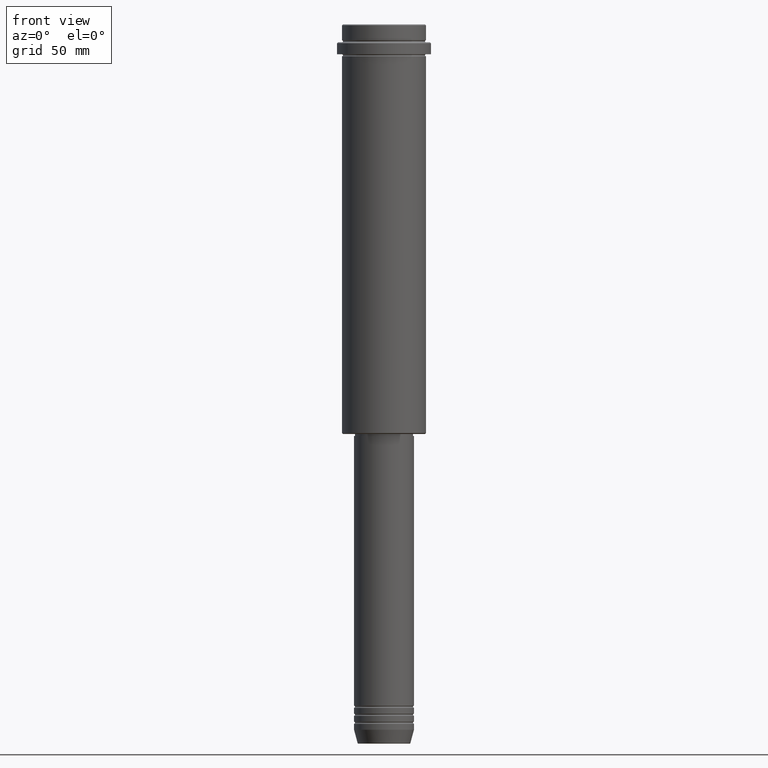
[diagram: clean part render]
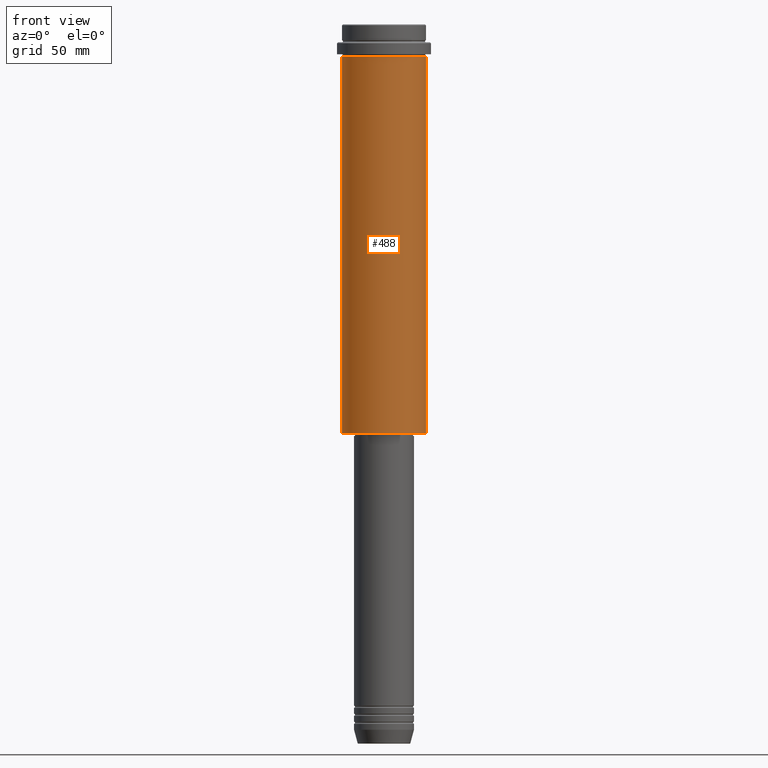
[diagram: same view with one face highlighted and labeled with its STEP entity id]
A machine part, front view. The second image highlights one B-rep face of the part: STEP entity #488.
In plain terms, the highlighted cylindrical surface (partial cylindrical patch) has radius 21 mm, axis along (-0, -0, 1).
Its self-contained STEP definition (entity closure, byte-faithful):
#35 = ORIENTED_EDGE ( 'NONE', *, *, #1148, .F. ) ;
#126 = CARTESIAN_POINT ( 'NONE',  ( -20.99999999999999645, 2.571758278209441267E-15, -16.00000000000000355 ) ) ;
#171 = DIRECTION ( 'NONE',  ( -0.000000000000000000, -0.000000000000000000, 1.000000000000000000 ) ) ;
#213 = CARTESIAN_POINT ( 'NONE',  ( 0.000000000000000000, 0.000000000000000000, -16.00000000000000355 ) ) ;
#323 = CARTESIAN_POINT ( 'NONE',  ( 0.000000000000000000, 0.000000000000000000, -204.5000000000000853 ) ) ;
#439 = CYLINDRICAL_SURFACE ( 'NONE', #573, 20.99999999999999645 ) ;
#460 = DIRECTION ( 'NONE',  ( -0.000000000000000000, -0.000000000000000000, 1.000000000000000000 ) ) ;
#473 = ORIENTED_EDGE ( 'NONE', *, *, #1313, .F. ) ;
#488 = ADVANCED_FACE ( 'NONE', ( #1196 ), #439, .T. ) ;
#522 = AXIS2_PLACEMENT_3D ( 'NONE', #323, #460, #1110 ) ;
#532 = EDGE_CURVE ( 'NONE', #1321, #1295, #756, .T. ) ;
#541 = DIRECTION ( 'NONE',  ( 1.000000000000000000, 0.000000000000000000, 0.000000000000000000 ) ) ;
#573 = AXIS2_PLACEMENT_3D ( 'NONE', #645, #863, #541 ) ;
#580 = EDGE_CURVE ( 'NONE', #1195, #1321, #1279, .T. ) ;
#645 = CARTESIAN_POINT ( 'NONE',  ( 0.000000000000000000, 0.000000000000000000, 0.000000000000000000 ) ) ;
#648 = CARTESIAN_POINT ( 'NONE',  ( -20.99999999999999645, 2.571758278209441267E-15, -204.5000000000000853 ) ) ;
#658 = EDGE_LOOP ( 'NONE', ( #473, #1169, #1025, #35 ) ) ;
#703 = VECTOR ( 'NONE', #171, 1000.000000000000000 ) ;
#710 = CARTESIAN_POINT ( 'NONE',  ( -20.99999999999999645, 2.571758278209441267E-15, 0.000000000000000000 ) ) ;
#756 = LINE ( 'NONE', #1322, #1145 ) ;
#772 = DIRECTION ( 'NONE',  ( -0.000000000000000000, -0.000000000000000000, 1.000000000000000000 ) ) ;
#780 = VERTEX_POINT ( 'NONE', #126 ) ;
#863 = DIRECTION ( 'NONE',  ( -0.000000000000000000, -0.000000000000000000, 1.000000000000000000 ) ) ;
#955 = CARTESIAN_POINT ( 'NONE',  ( 20.99999999999999645, 0.000000000000000000, -204.5000000000000853 ) ) ;
#1025 = ORIENTED_EDGE ( 'NONE', *, *, #532, .T. ) ;
#1110 = DIRECTION ( 'NONE',  ( -1.000000000000000000, 0.000000000000000000, 0.000000000000000000 ) ) ;
#1141 = CARTESIAN_POINT ( 'NONE',  ( 20.99999999999999645, 0.000000000000000000, -16.00000000000000355 ) ) ;
#1145 = VECTOR ( 'NONE', #772, 1000.000000000000000 ) ;
#1148 = EDGE_CURVE ( 'NONE', #780, #1295, #1173, .T. ) ;
#1169 = ORIENTED_EDGE ( 'NONE', *, *, #580, .T. ) ;
#1173 = CIRCLE ( 'NONE', #1242, 20.99999999999999645 ) ;
#1190 = DIRECTION ( 'NONE',  ( 1.000000000000000000, 0.000000000000000000, 0.000000000000000000 ) ) ;
#1195 = VERTEX_POINT ( 'NONE', #648 ) ;
#1196 = FACE_OUTER_BOUND ( 'NONE', #658, .T. ) ;
#1215 = DIRECTION ( 'NONE',  ( -0.000000000000000000, -0.000000000000000000, 1.000000000000000000 ) ) ;
#1242 = AXIS2_PLACEMENT_3D ( 'NONE', #213, #1215, #1190 ) ;
#1279 = CIRCLE ( 'NONE', #522, 20.99999999999999645 ) ;
#1295 = VERTEX_POINT ( 'NONE', #1141 ) ;
#1313 = EDGE_CURVE ( 'NONE', #1195, #780, #1364, .T. ) ;
#1321 = VERTEX_POINT ( 'NONE', #955 ) ;
#1322 = CARTESIAN_POINT ( 'NONE',  ( 20.99999999999999645, 0.000000000000000000, 0.000000000000000000 ) ) ;
#1364 = LINE ( 'NONE', #710, #703 ) ;